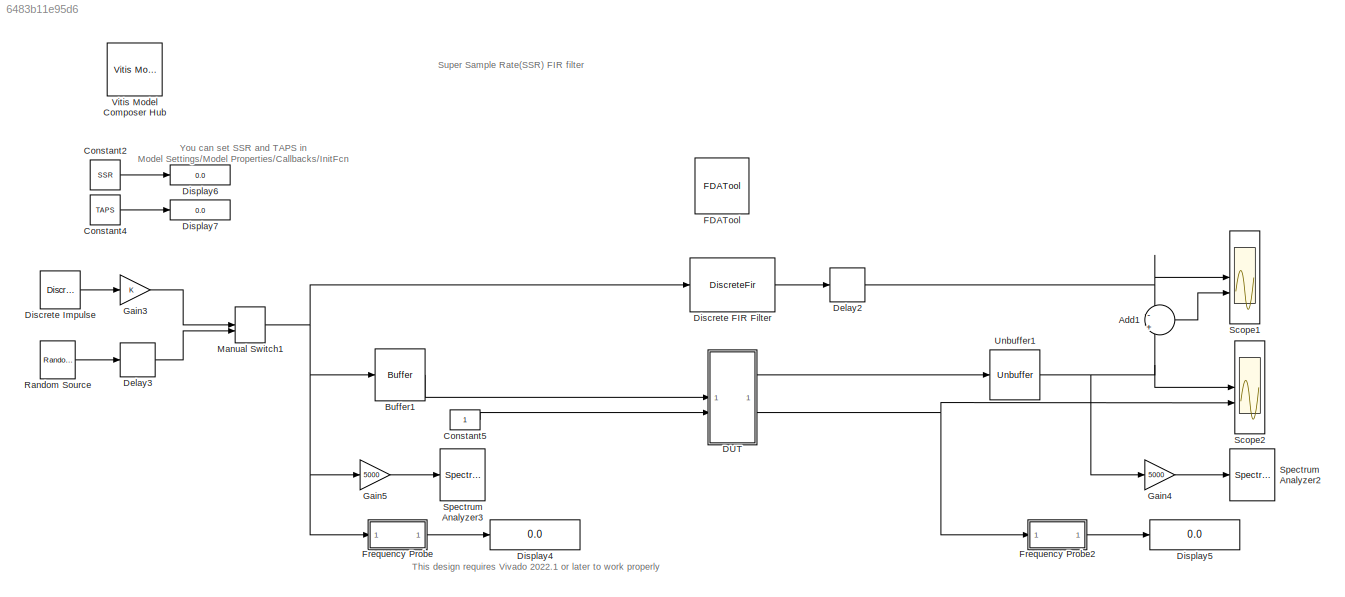
MODEL slx_6483b11e95d6
KIND model
CONFIG AbsTol = auto
CONFIG EnableMultiTasking = off
CONFIG FixedStep = auto
CONFIG InitFcn = SSR=5;\nTAPS=64;\n
CONFIG MaxStep = auto
CONFIG MinStep = auto
CONFIG RelTol = 1e-3
CONFIG SampleTimeConstraint = Unconstrained
CONFIG SolverName = VariableStepAuto
CONFIG StartTime = 0.0
CONFIG StopTime = 1000
BLOCK [Sum] Add1
  Inputs = -|+
BLOCK [Buffer] Buffer1
  N = SSR
  OutputFrames = off
BLOCK [Constant] Constant2
  Value = SSR
BLOCK [Constant] Constant4
  Value = TAPS
BLOCK [Constant] Constant5
  SampleTime = -1
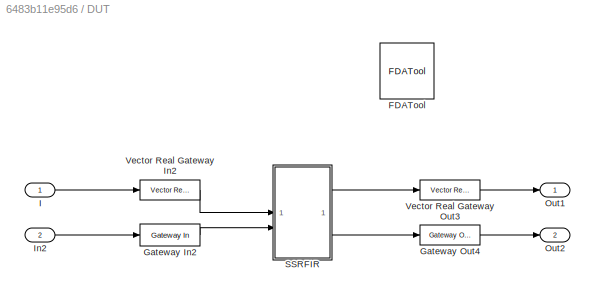
BLOCK [SubSystem] DUT
BLOCK [Reference] DUT/FDATool  REF=hdlUtilities/FDATool
  SourceBlock = hdlUtilities/FDATool
  SourceType = Xilinx FDATool Interface Block
  UserDataPersistent = on
BLOCK [Reference] DUT/Gateway In2  REF=hdlBasic/Gateway In
  SourceBlock = hdlBasic/Gateway In
  SourceType = Gateway In Block
BLOCK [Reference] DUT/Gateway Out4  REF=hdlBasic/Gateway Out
  SourceBlock = hdlBasic/Gateway Out
  SourceType = Gateway Out Block
BLOCK [Inport] DUT/I
BLOCK [Inport] DUT/In2
  Port = 2
BLOCK [Outport] DUT/Out1
BLOCK [Outport] DUT/Out2
  Port = 2
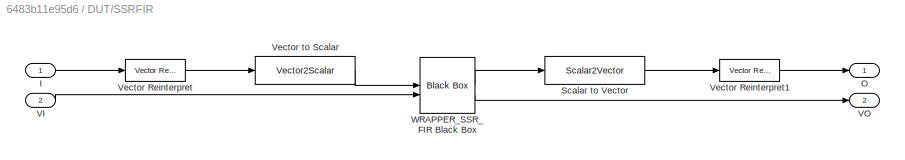
BLOCK [SubSystem] DUT/SSRFIR
BLOCK [Inport] DUT/SSRFIR/I
BLOCK [Outport] DUT/SSRFIR/O
BLOCK [Reference] DUT/SSRFIR/Scalar to Vector  REF=hdlSSR/Scalar2Vector
  SourceBlock = hdlSSR/Scalar2Vector
  SourceProductName = Xilinx SSR Blockset
  SourceType = Xilinx Scalar2Vector Block
BLOCK [Inport] DUT/SSRFIR/VI
  Port = 2
BLOCK [Outport] DUT/SSRFIR/VO
  Port = 2
BLOCK [Reference] DUT/SSRFIR/Vector Reinterpret  REF=hdlSSR/Vector Reinterpret
  SourceBlock = hdlSSR/Vector Reinterpret
  SourceProductName = Xilinx SSR Blockset
  SourceType = Xilinx Vector Type Reinterpreter Block
BLOCK [Reference] DUT/SSRFIR/Vector Reinterpret1  REF=hdlSSR/Vector Reinterpret
  SourceBlock = hdlSSR/Vector Reinterpret
  SourceProductName = Xilinx SSR Blockset
  SourceType = Xilinx Vector Type Reinterpreter Block
BLOCK [Reference] DUT/SSRFIR/Vector to Scalar  REF=hdlSSR/Vector2Scalar
  SourceBlock = hdlSSR/Vector2Scalar
  SourceProductName = Xilinx SSR Blockset
  SourceType = Xilinx Vector2Scalar Block
BLOCK [Reference] DUT/SSRFIR/WRAPPER_SSR_FIR Black Box  REF=hdlBasic/Black Box
  SourceBlock = hdlBasic/Black Box
  SourceType = Black Box Block
BLOCK [Reference] DUT/Vector Real Gateway In2  REF=hdlSSR/Vector Real Gateway In
  SourceBlock = hdlSSR/Vector Real Gateway In
  SourceProductName = Xilinx SSR Blockset
  SourceType = Xilinx Vector Gateway In Block
BLOCK [Reference] DUT/Vector Real Gateway Out3  REF=hdlSSR/Vector Real Gateway Out
  SourceBlock = hdlSSR/Vector Real Gateway Out
  SourceProductName = Xilinx SSR Blockset
  SourceType = Xilinx Vector Gateway Out Block
BLOCK [Delay] Delay2
  DelayLength = (TAPS+4)*SSR
  InputPortMap = u0
BLOCK [Delay] Delay3
  DelayLength = 20
  InputPortMap = u0
BLOCK [DiscreteFir] Discrete FIR Filter
  Coefficients = xlfda_numerator('FDATool')
  InputPortMap = u0
  InputProcessing = Columns as channels (frame based)
  OutputPortMap = o0
BLOCK [Reference] Discrete Impulse  REF=dspsrcs4/Discrete 
Impulse
  SourceBlock = dspsrcs4/Discrete \nImpulse
  SourceType = Discrete Impulse
BLOCK [Display] Display4
  Decimation = 1
BLOCK [Display] Display5
  Decimation = 1
BLOCK [Display] Display6
  Decimation = 1
BLOCK [Display] Display7
  Decimation = 1
BLOCK [Reference] FDATool  REF=hdlUtilities/FDATool
  SourceBlock = hdlUtilities/FDATool
  SourceType = Xilinx FDATool Interface Block
  UserDataPersistent = on
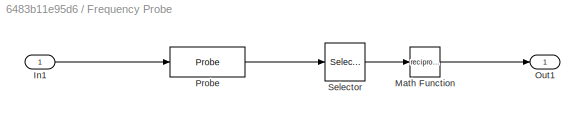
BLOCK [SubSystem] Frequency Probe
BLOCK [Inport] Frequency Probe/In1
BLOCK [Math] Frequency Probe/Math Function
  Operator = reciprocal
BLOCK [Outport] Frequency Probe/Out1
BLOCK [Probe] Frequency Probe/Probe
  ProbeComplexSignal = off
  ProbeWidth = off
BLOCK [Selector] Frequency Probe/Selector
  IndexOptions = Index vector (dialog)
  Indices = 1
  InputPortWidth = 2
  OutputSizes = 1
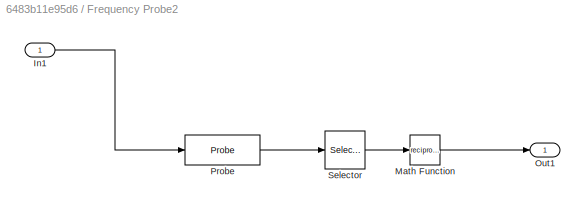
BLOCK [SubSystem] Frequency Probe2
BLOCK [Inport] Frequency Probe2/In1
BLOCK [Math] Frequency Probe2/Math Function
  Operator = reciprocal
BLOCK [Outport] Frequency Probe2/Out1
BLOCK [Probe] Frequency Probe2/Probe
  ProbeComplexSignal = off
  ProbeWidth = off
BLOCK [Selector] Frequency Probe2/Selector
  IndexOptions = Index vector (dialog)
  Indices = 1
  InputPortWidth = 2
  OutputSizes = 1
BLOCK [Gain] Gain3
BLOCK [Gain] Gain4
  Gain = 5000
BLOCK [Gain] Gain5
  Gain = 5000
BLOCK [ManualSwitch] Manual Switch1
  CurrentSetting = 0
BLOCK [Reference] Random Source  REF=dspobslib/Random
Source
  SourceBlock = dspobslib/Random\nSource
  SourceType = Random Source Obsolete
  UserDataPersistent = on
BLOCK [Scope] Scope1
  Floating = off
  NumInputPorts = 2
  ScopeSpecificationString = Simulink.scopes.TimeScopeBlockCfg('CurrentConfiguration', extmgr.ConfigurationSet(extmgr.Configuration('Core','General UI',true,'DisplayFullSourceName',false,'ShowMainToolbar',true),extmgr.Configuration('Sources','WiredSimulink',true,'DataLogging',false,'DataLoggingVariableName','ScopeData2','DataLoggingLimitDataPoints',false,'DataLoggingMaxPoints','5000','DataLoggingDecimateData',false,'DataLoggi...<+2780ch>
BLOCK [Scope] Scope2
  Floating = off
  NumInputPorts = 2
  ScopeSpecificationString = Simulink.scopes.TimeScopeBlockCfg('CurrentConfiguration', extmgr.ConfigurationSet(extmgr.Configuration('Core','General UI',true,'DisplayFullSourceName',false,'ShowMainToolbar',true),extmgr.Configuration('Sources','WiredSimulink',true,'DataLogging',false,'DataLoggingVariableName','ScopeData1','DataLoggingLimitDataPoints',false,'DataLoggingMaxPoints','5000','DataLoggingDecimateData',false,'DataLoggi...<+2778ch>
BLOCK [SpectrumAnalyzer] Spectrum Analyzer2
  AllowFFTLengthLessThanSamplesPerUpdate = on
  AveragingMethod = Exponential
  AxesScaling = Manual
  ChannelNames = [""]
  DefaultConfigurationName = spbscopes.SpectrumAnalyzerBlockCfg
  GraphicalSettings = {"GraphicalSettings":{"Style":{"BackgroundColor":[0.12941176470588237,0.12941176470588237,0.12941176470588237],"AxesColor":[0,0,0],"LabelsColor":[0.6862745098039216,0.6862745098039216,0.6862745098039216],"PreserveColors":false,"Visible":[true],"LineStyle":["-"],"LineColor":[[1,0.9098039215686274,0.39215686274509803]],"LineWidth":[1],"Marker":["none"],"FontSize":"small"},"Cursors":{"Enabled":false,...<+890ch>
  SampleRate = 5
  ScopeFrameLocation = window
  ScopeSpecificationString = spbscopes.SpectrumAnalyzerBlockCfg('CurrentConfiguration', extmgr.ConfigurationSet(extmgr.Configuration('Core','General UI',true,'FigureColor',[0.16        0.16        0.16]),extmgr.Configuration('Visuals','Spectrum',true,'Title','','YLabel','','MinYLim','-125.0298','MaxYLim','37.1965','Legend',false,'AxesProperties',struct('XGrid',{'on','on'},'YGrid',{'on','on'},'ZGrid',{'on','on'},'Color',{[0 0 ...<+2326ch>
  Span = 5
  StartFrequency = -2.5
  StopFrequency = 2.5
  Visible = on
  WasSavedAsWebScope = on
  WindowPosition = [560.000000,313.000000,802.000000,452.000000,]
  YLimits = [-125.0298,37.1965]
BLOCK [SpectrumAnalyzer] Spectrum Analyzer3
  AllowFFTLengthLessThanSamplesPerUpdate = on
  AveragingMethod = Exponential
  AxesScaling = Manual
  ChannelNames = [""]
  DefaultConfigurationName = spbscopes.SpectrumAnalyzerBlockCfg
  GraphicalSettings = {"GraphicalSettings":{"Style":{"BackgroundColor":[0.12941176470588237,0.12941176470588237,0.12941176470588237],"AxesColor":[0,0,0],"LabelsColor":[0.6862745098039216,0.6862745098039216,0.6862745098039216],"PreserveColors":false,"Visible":[true],"LineStyle":["-"],"LineColor":[[1,0.9098039215686274,0.39215686274509803]],"LineWidth":[1],"Marker":["none"],"FontSize":"small"},"Cursors":{"Enabled":false,...<+890ch>
  SampleRate = 5
  ScopeFrameLocation = window
  ScopeSpecificationString = spbscopes.SpectrumAnalyzerBlockCfg('CurrentConfiguration', extmgr.ConfigurationSet(extmgr.Configuration('Core','General UI',true,'FigureColor',[0.16        0.16        0.16]),extmgr.Configuration('Visuals','Spectrum',true,'Title','','YLabel','','MinYLim','-130','MaxYLim','10','Legend',false,'AxesProperties',struct('XGrid',{'on','on'},'YGrid',{'on','on'},'ZGrid',{'on','on'},'Color',{[0 0 0],[0 0 0]...<+2316ch>
  Span = 5
  StartFrequency = -2.5
  StopFrequency = 2.5
  Visible = on
  WasSavedAsWebScope = on
  WindowPosition = [557.000000,286.000000,808.000000,450.000000,]
  YLimits = [-130,10]
BLOCK [Unbuffer] Unbuffer1
BLOCK [Reference] Vitis Model Composer Hub  REF=vmcUtilities/Vitis Model Composer Hub
  SourceBlock = vmcUtilities/Vitis Model Composer Hub
  SourceType = VMC Hub
  Tag = genX
  UserDataPersistent = on
ANNOTATION (root): Super Sample Rate(SSR) FIR filter
ANNOTATION (root): This design requires Vivado 2022.1 or later to work properly
ANNOTATION (root): You can set SSR and TAPS in Model Settings/Model Properties/Callbacks/InitFcn
LINE Add1:1 -> Scope1:2
LINE Buffer1:1 -> DUT:1
LINE Constant2:1 -> Display6:1
LINE Constant4:1 -> Display7:1
LINE Constant5:1 -> DUT:2
LINE DUT/Gateway In2:1 -> DUT/SSRFIR:2
LINE DUT/Gateway Out4:1 -> DUT/Out2:1
LINE DUT/I:1 -> DUT/Vector Real Gateway In2:1
LINE DUT/In2:1 -> DUT/Gateway In2:1
LINE DUT/SSRFIR/I:1 -> DUT/SSRFIR/Vector Reinterpret:1
LINE DUT/SSRFIR/Scalar to Vector:1 -> DUT/SSRFIR/Vector Reinterpret1:1
LINE DUT/SSRFIR/VI:1 -> DUT/SSRFIR/WRAPPER_SSR_FIR Black Box:2
LINE DUT/SSRFIR/Vector Reinterpret1:1 -> DUT/SSRFIR/O:1
LINE DUT/SSRFIR/Vector Reinterpret:1 -> DUT/SSRFIR/Vector to Scalar:1
LINE DUT/SSRFIR/Vector to Scalar:1 -> DUT/SSRFIR/WRAPPER_SSR_FIR Black Box:1
LINE DUT/SSRFIR/WRAPPER_SSR_FIR Black Box:1 -> DUT/SSRFIR/Scalar to Vector:1
LINE DUT/SSRFIR/WRAPPER_SSR_FIR Black Box:2 -> DUT/SSRFIR/VO:1
LINE DUT/SSRFIR:1 -> DUT/Vector Real Gateway Out3:1
LINE DUT/SSRFIR:2 -> DUT/Gateway Out4:1
LINE DUT/Vector Real Gateway In2:1 -> DUT/SSRFIR:1
LINE DUT/Vector Real Gateway Out3:1 -> DUT/Out1:1
LINE DUT:1 -> Unbuffer1:1
NET DUT:2 -> Frequency Probe2:1, Scope2:2
NET Delay2:1 -> Add1:1, Scope1:1
LINE Delay3:1 -> Manual Switch1:2
LINE Discrete FIR Filter:1 -> Delay2:1
LINE Discrete Impulse:1 -> Gain3:1
LINE Frequency Probe/In1:1 -> Frequency Probe/Probe:1
LINE Frequency Probe/Math Function:1 -> Frequency Probe/Out1:1
LINE Frequency Probe/Probe:1 -> Frequency Probe/Selector:1
LINE Frequency Probe/Selector:1 -> Frequency Probe/Math Function:1
LINE Frequency Probe2/In1:1 -> Frequency Probe2/Probe:1
LINE Frequency Probe2/Math Function:1 -> Frequency Probe2/Out1:1
LINE Frequency Probe2/Probe:1 -> Frequency Probe2/Selector:1
LINE Frequency Probe2/Selector:1 -> Frequency Probe2/Math Function:1
LINE Frequency Probe2:1 -> Display5:1
LINE Frequency Probe:1 -> Display4:1
LINE Gain3:1 -> Manual Switch1:1
LINE Gain4:1 -> Spectrum Analyzer2:1
LINE Gain5:1 -> Spectrum Analyzer3:1
NET Manual Switch1:1 -> Buffer1:1, Discrete FIR Filter:1, Frequency Probe:1, Gain5:1
LINE Random Source:1 -> Delay3:1
NET Unbuffer1:1 -> Add1:2, Gain4:1, Scope2:1
note: NET lines group one-source signal fan-out (src -> all destinations, sorted); 1:1 wires keep LINE
